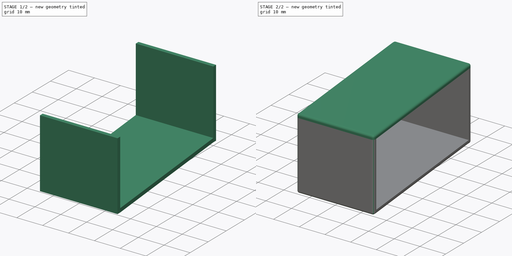
[diagram: build sequence overview — one tinted view per stage of 2, left to right]
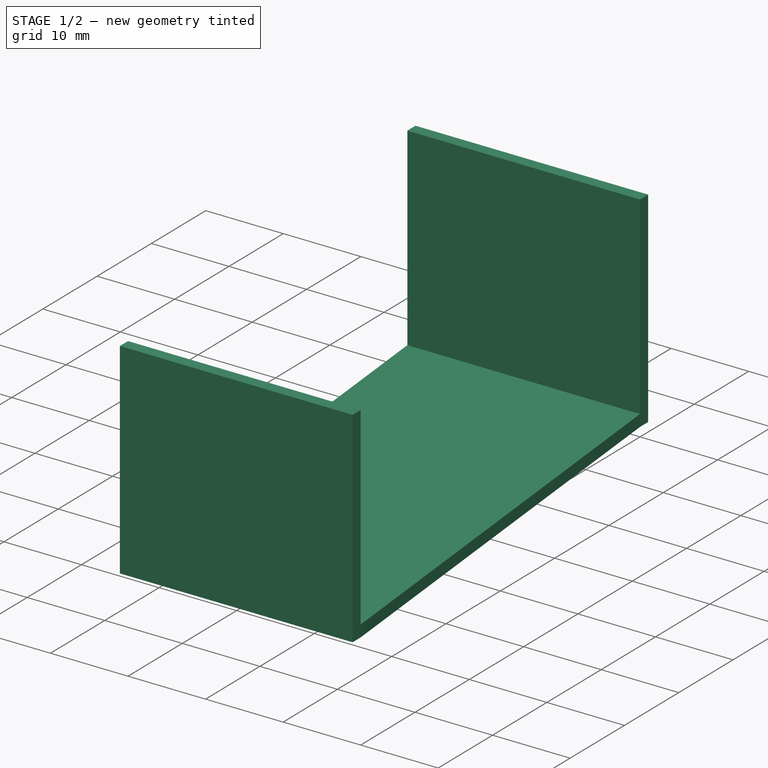
[diagram: stage 1 of 2 — iso view after this stage's code; geometry added in this stage tinted green]
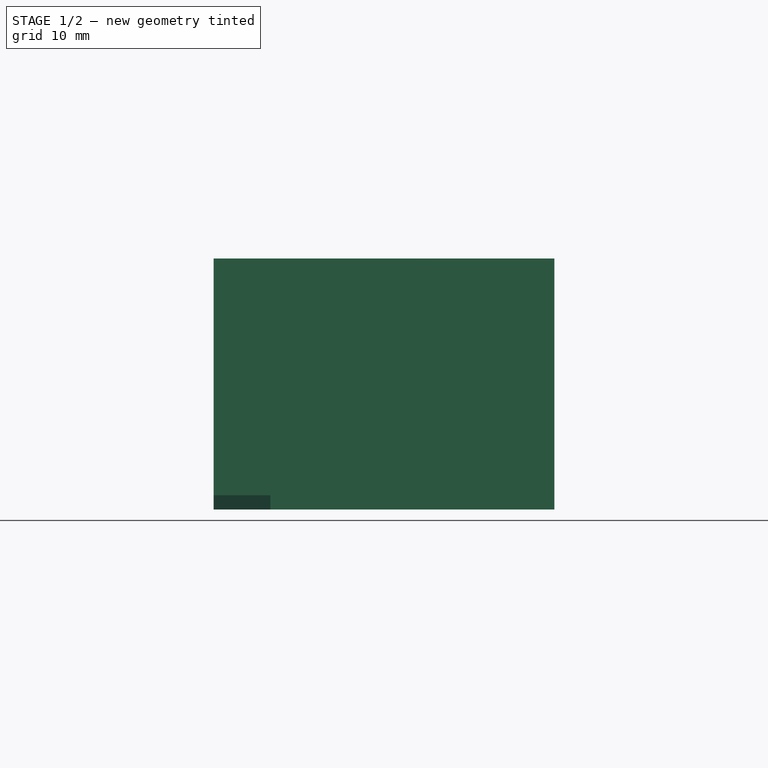
[diagram: stage 1 of 2 — front view after this stage's code; geometry added in this stage tinted green]
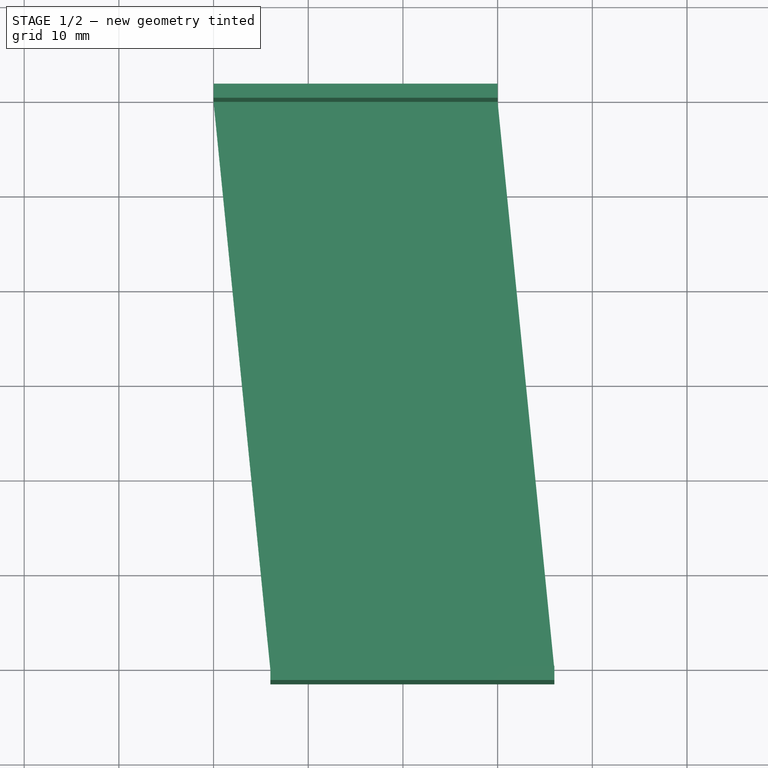
[diagram: stage 1 of 2 — top view after this stage's code; geometry added in this stage tinted green]
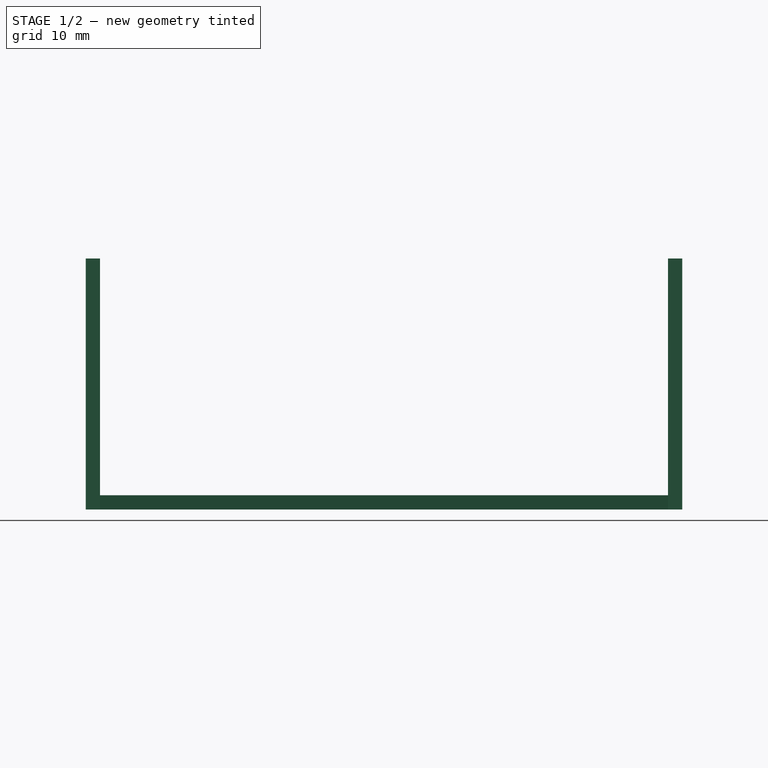
[diagram: stage 1 of 2 — right view after this stage's code; geometry added in this stage tinted green]
FCSTD DOCUMENT  (FreeCAD 0.19R24267 +99 (Git))
Label: Body elastic band
License: All rights reserved
LicenseURL: http://en.wikipedia.org/wiki/All_rights_reserved
objects: Sketcher::SketchObject×3, PartDesign::Pad×3, PartDesign::Fillet×1, PartDesign::Body×1
note: 12 computed .brp shape members not serialized (recipe doc carries the construction recipe); baked Part::Feature solids carry a one-line shape summary decoded from their .brp

FEATURE [Sketcher::SketchObject] Sketch  label="First side profile"
  FullyConstrained = true
  MapMode = 5
  Support = -> [XY_Plane]
  sketch-geometry (12):
    g0: LineSegment StartX=-30 StartY=0 StartZ=0 EndX=0 EndY=0 EndZ=0
    g1: LineSegment StartX=0 StartY=0 StartZ=0 EndX=0 EndY=1.5 EndZ=0
    g2: LineSegment StartX=0 StartY=1.5 StartZ=0 EndX=-30 EndY=1.5 EndZ=0
    g3: LineSegment StartX=-30 StartY=1.5 StartZ=0 EndX=-30 EndY=0 EndZ=0
    g4: LineSegment StartX=-24 StartY=-60 StartZ=0 EndX=6 EndY=-60 EndZ=0
    g5: LineSegment StartX=6 StartY=-60 StartZ=0 EndX=6 EndY=-61.5 EndZ=0
    g6: LineSegment StartX=6 StartY=-61.5 StartZ=0 EndX=-24 EndY=-61.5 EndZ=0
    g7: LineSegment StartX=-24 StartY=-61.5 StartZ=0 EndX=-24 EndY=-60 EndZ=0
    g8: LineSegment StartX=-30 StartY=0 StartZ=0 EndX=-24 EndY=-60 EndZ=0
    g9: LineSegment StartX=6 StartY=-60 StartZ=0 EndX=0 EndY=0 EndZ=0
    g10: GeomPoint X=0 Y=-31.5 Z=0
    g11: GeomPoint X=6 Y=-60.75 Z=0
  constraints (31):
    c: Coincident(g0,g1)
    c: Coincident(g1,g2)
    c: Coincident(g2,g3)
    c: Coincident(g3,g0)
    c: Horizontal(g0)
    c: Horizontal(g2)
    c: Vertical(g1)
    c: Vertical(g3)
    c: DistanceX(g2,g2) = 30
    c: DistanceY(g1,g1) = 1.5
    c: Coincident(g4,g5)
    c: Coincident(g5,g6)
    c: Coincident(g6,g7)
    c: Coincident(g7,g4)
    c: Horizontal(g4)
    c: Horizontal(g6)
    c: Vertical(g5)
    c: Vertical(g7)
    c: Equal(g2,g4)
    c: Coincident(g8,g0)
    c: Coincident(g8,g4)
    c: Coincident(g9,g4)
    c: Coincident(g9,g0)
    c: PointOnObject(g10,g-2)
    c: DistanceY(g10,g3) = 31.5
    c: Coincident(g1,g-1)
    c: Symmetric(g5,g5,g11)
    c: DistanceX(g11,g1) = -6
    c: DistanceY(g5,g10) = 28.5
    c: Equal(g1,g5)
    c: Distance(g8) = 60.2993
FEATURE [PartDesign::Pad] Pad  label="First side profile thickness"
  Direction = (1,1,1)
  Length = 1.5
  Length2 = 100
  Profile = -> Sketch
  Type = 0
FEATURE [Sketcher::SketchObject] Sketch001  label="Through profile"
  ExternalGeometry = -> [Pad]
  FullyConstrained = true
  MapMode = 5
  Placement = pos=(0,0,1.5) rot=(0,0,1;0rad)
  Support = -> [Pad]
  sketch-geometry (8):
    g0: LineSegment StartX=-30 StartY=1.5 StartZ=0 EndX=0 EndY=1.5 EndZ=0
    g1: LineSegment StartX=0 StartY=1.5 StartZ=0 EndX=0 EndY=0 EndZ=0
    g2: LineSegment StartX=0 StartY=0 StartZ=0 EndX=-30 EndY=0 EndZ=0
    g3: LineSegment StartX=-30 StartY=0 StartZ=0 EndX=-30 EndY=1.5 EndZ=0
    g4: LineSegment StartX=-24 StartY=-60 StartZ=0 EndX=6 EndY=-60 EndZ=0
    g5: LineSegment StartX=6 StartY=-60 StartZ=0 EndX=6 EndY=-61.5 EndZ=0
    g6: LineSegment StartX=6 StartY=-61.5 StartZ=0 EndX=-24 EndY=-61.5 EndZ=0
    g7: LineSegment StartX=-24 StartY=-61.5 StartZ=0 EndX=-24 EndY=-60 EndZ=0
  constraints (16):
    c: Coincident(g0,g-5)
    c: Coincident(g0,g-6)
    c: Coincident(g1,g0)
    c: Coincident(g1,g-6)
    c: Coincident(g2,g1)
    c: Coincident(g2,g-5)
    c: Coincident(g3,g2)
    c: Coincident(g3,g0)
    c: Coincident(g4,g-3)
    c: Coincident(g4,g-4)
    c: Coincident(g5,g4)
    c: Coincident(g5,g-4)
    c: Coincident(g6,g5)
    c: Coincident(g6,g-3)
    c: Coincident(g7,g6)
    c: Coincident(g7,g4)
FEATURE [PartDesign::Pad] Pad001  label="Through profile length"
  BaseFeature = -> Pad
  Direction = (1,1,1)
  Length = 25
  Length2 = 100
  Profile = -> Sketch001
  Type = 0
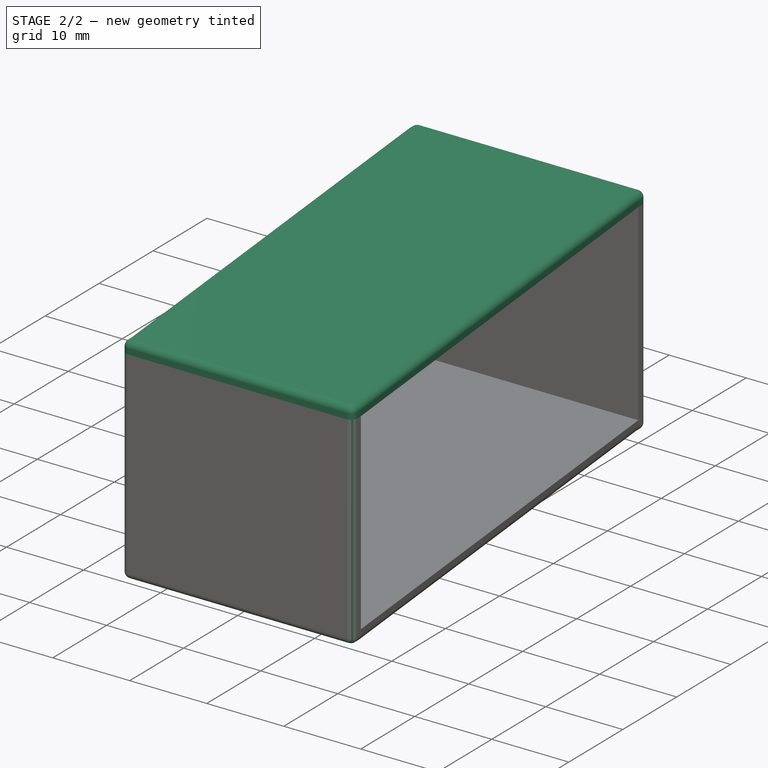
[diagram: stage 2 of 2 — iso view after this stage's code; geometry added in this stage tinted green]
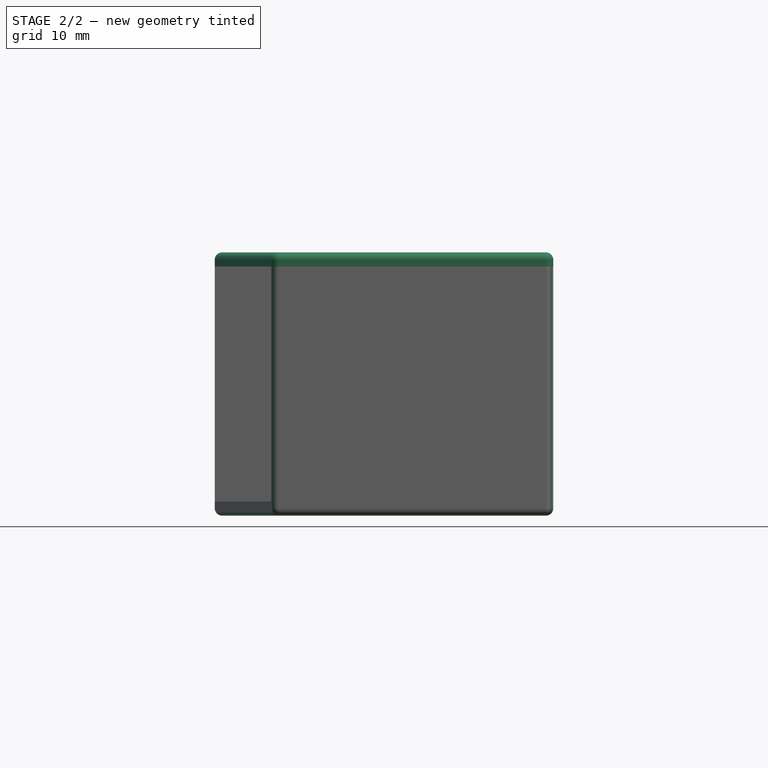
[diagram: stage 2 of 2 — front view after this stage's code; geometry added in this stage tinted green]
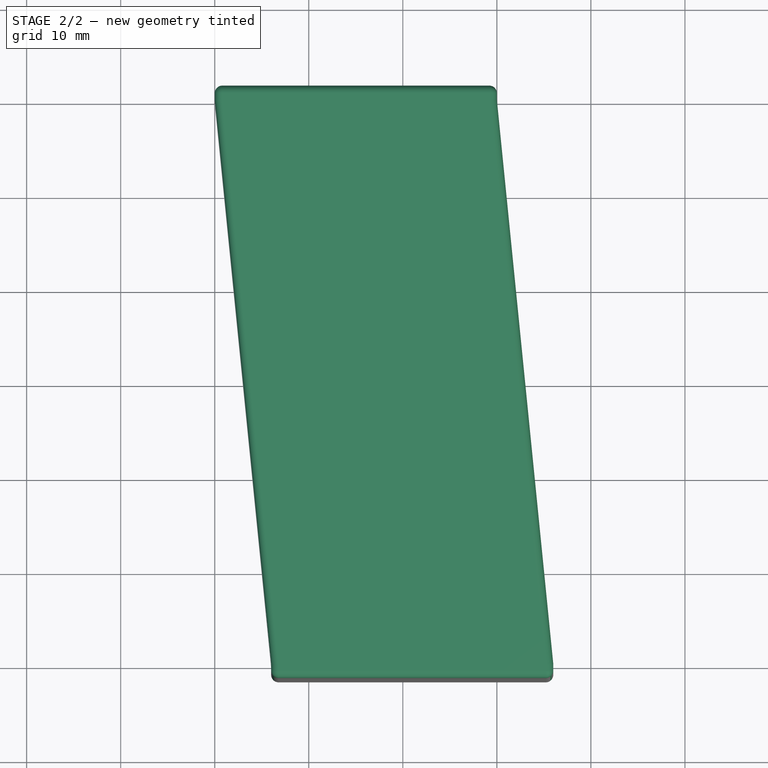
[diagram: stage 2 of 2 — top view after this stage's code; geometry added in this stage tinted green]
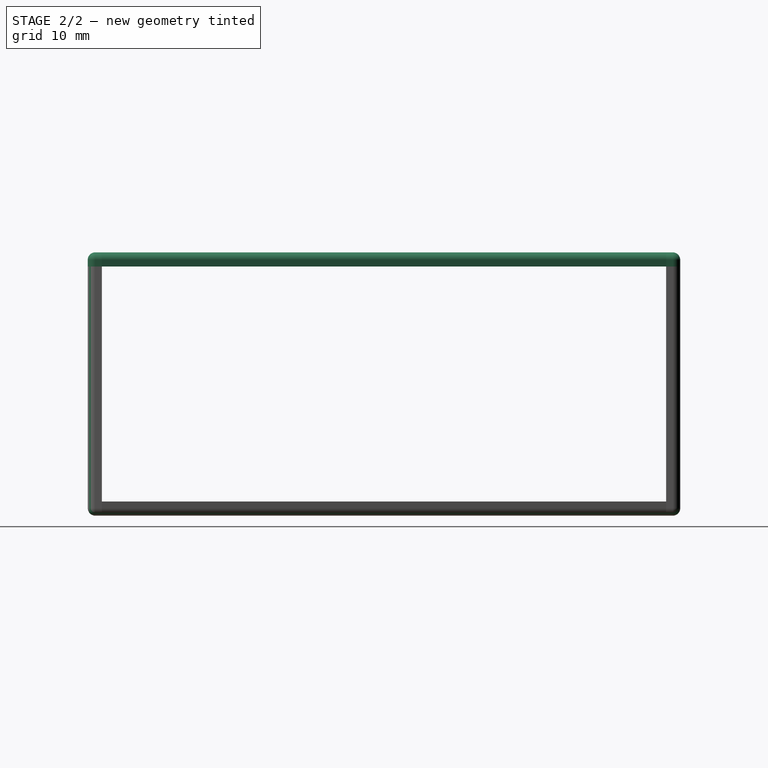
[diagram: stage 2 of 2 — right view after this stage's code; geometry added in this stage tinted green]
FEATURE [Sketcher::SketchObject] Sketch002  label="Second side profile"
  ExternalGeometry = -> [Pad001]
  FullyConstrained = true
  MapMode = 5
  Placement = pos=(0,0,26.5) rot=(0,0,1;0rad)
  Support = -> [Pad001]
  sketch-geometry (8):
    g0: LineSegment StartX=-24 StartY=-60 StartZ=0 EndX=-30 EndY=0 EndZ=0
    g1: LineSegment StartX=-30 StartY=0 StartZ=0 EndX=-30 EndY=1.5 EndZ=0
    g2: LineSegment StartX=-30 StartY=1.5 StartZ=0 EndX=0 EndY=1.5 EndZ=0
    g3: LineSegment StartX=0 StartY=1.5 StartZ=0 EndX=0 EndY=0 EndZ=0
    g4: LineSegment StartX=0 StartY=0 StartZ=0 EndX=6 EndY=-60 EndZ=0
    g5: LineSegment StartX=6 StartY=-60 StartZ=0 EndX=6 EndY=-61.5 EndZ=0
    g6: LineSegment StartX=6 StartY=-61.5 StartZ=0 EndX=-24 EndY=-61.5 EndZ=0
    g7: LineSegment StartX=-24 StartY=-61.5 StartZ=0 EndX=-24 EndY=-60 EndZ=0
  constraints (16):
    c: Coincident(g0,g-6)
    c: Coincident(g0,g-3)
    c: Coincident(g1,g0)
    c: Coincident(g1,g-3)
    c: Coincident(g2,g1)
    c: Coincident(g2,g-4)
    c: Coincident(g3,g2)
    c: Coincident(g3,g-4)
    c: Coincident(g4,g3)
    c: Coincident(g4,g-5)
    c: Coincident(g5,g4)
    c: Coincident(g5,g-5)
    c: Coincident(g6,g5)
    c: Coincident(g6,g-6)
    c: Coincident(g7,g6)
    c: Coincident(g7,g0)
FEATURE [PartDesign::Pad] Pad002  label="Second side profile thickness"
  BaseFeature = -> Pad001
  Direction = (1,1,1)
  Length = 1.5
  Length2 = 100
  Profile = -> Sketch002
  Type = 0
FEATURE [PartDesign::Fillet] Fillet  label="Outer edge rounds"
  Base = -> Pad002 [Edge37,Edge22,Edge15,Edge52,Edge26,Edge56,Edge42,Edge11,Edge9,Edge3,Edge6,Edge12,Edge13,Edge14,Edge46,Edge53,Edge41,Edge55,Edge54,Edge57]
  BaseFeature = -> Pad002
  Radius = 0.8
  SupportTransform = false
FEATURE [PartDesign::Body] Body
  Group = -> [Sketch,Pad,Sketch001,Pad001,Sketch002,Pad002,Fillet]
  Origin = -> Origin
  Tip = -> Fillet
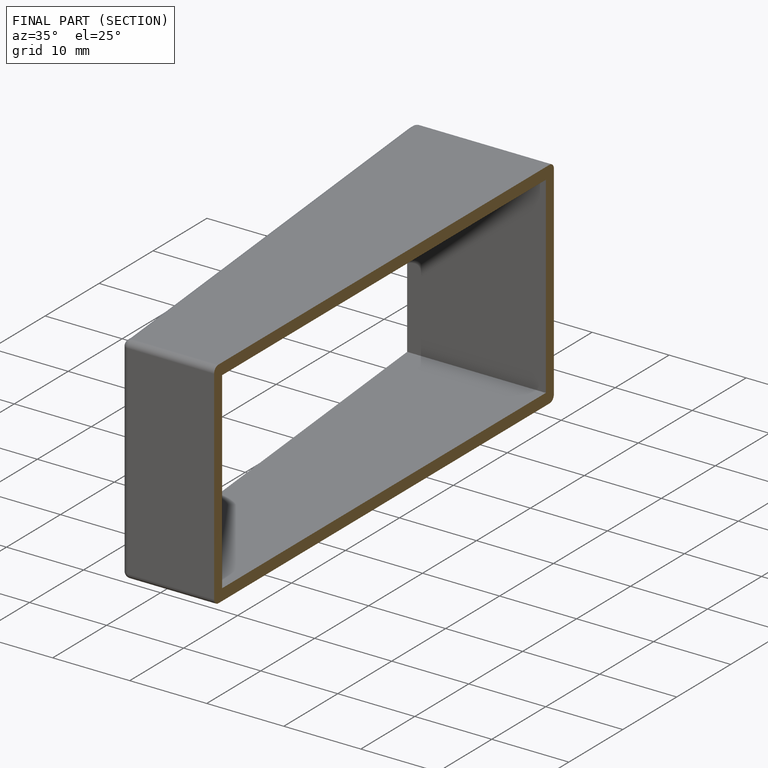
[diagram: finished part — half-section view (interior)]
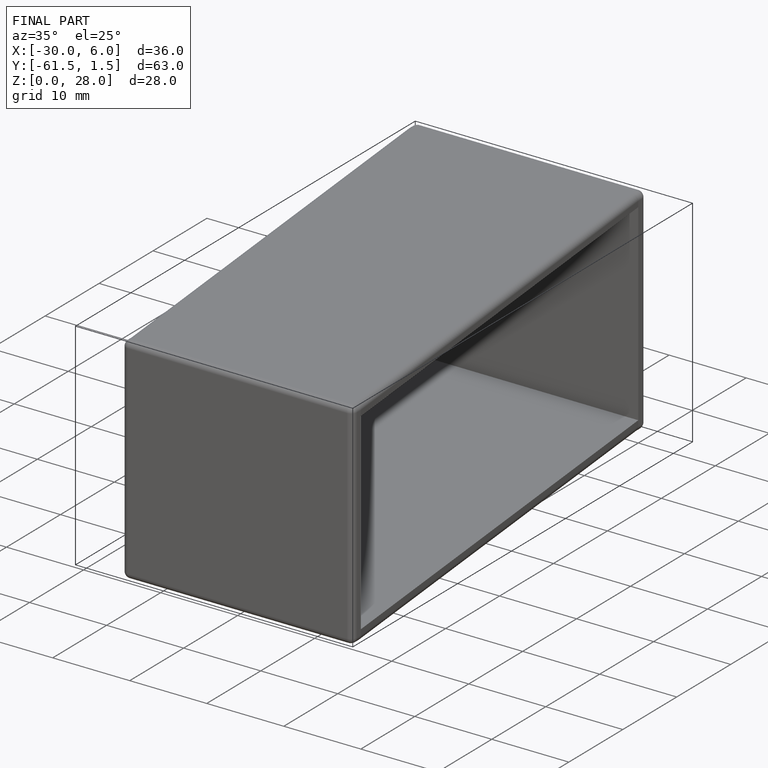
[diagram: finished part — iso view with bounding-box wireframe]
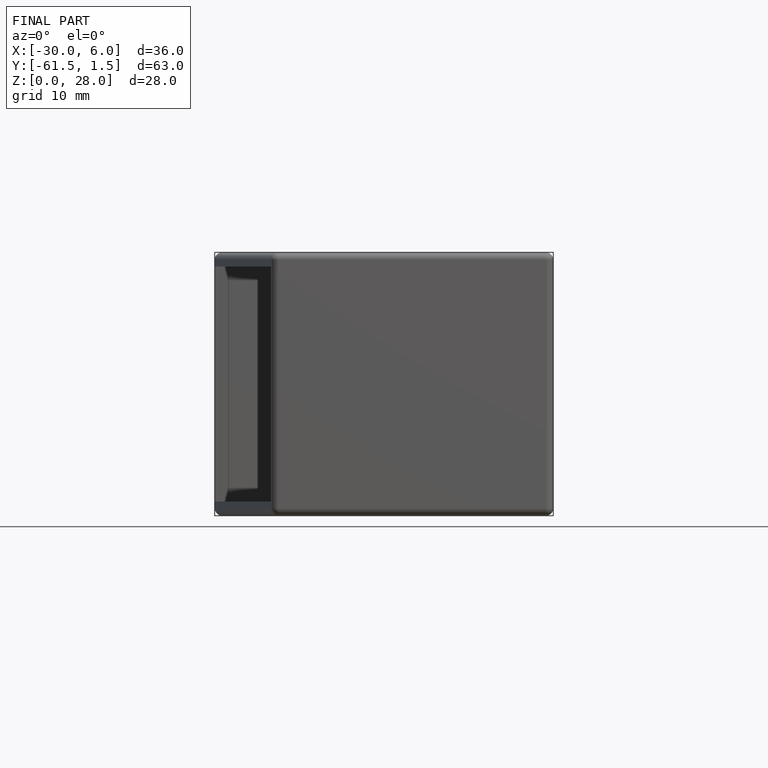
[diagram: finished part — front view with bounding-box wireframe]
